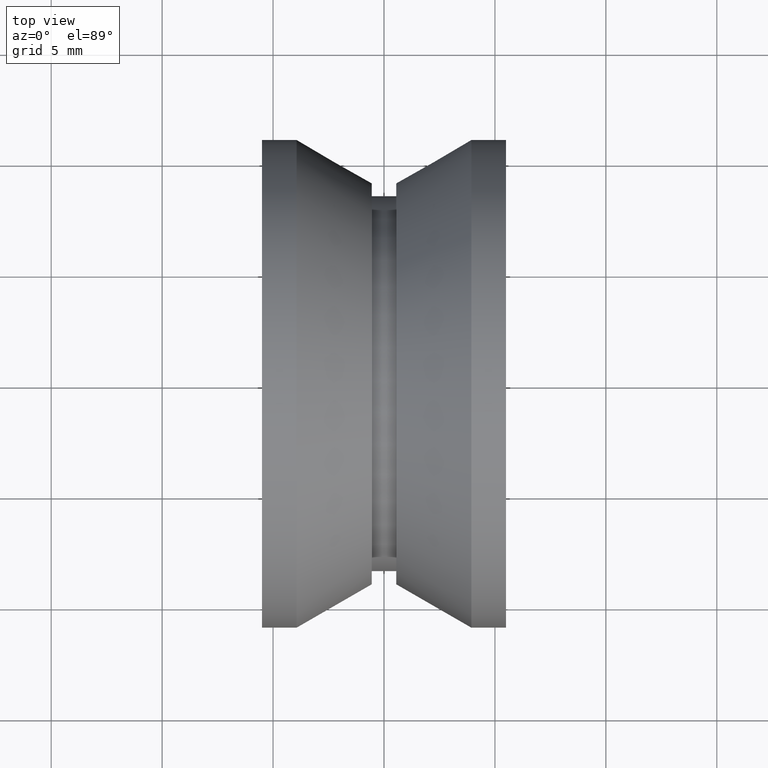
[diagram: clean part render]
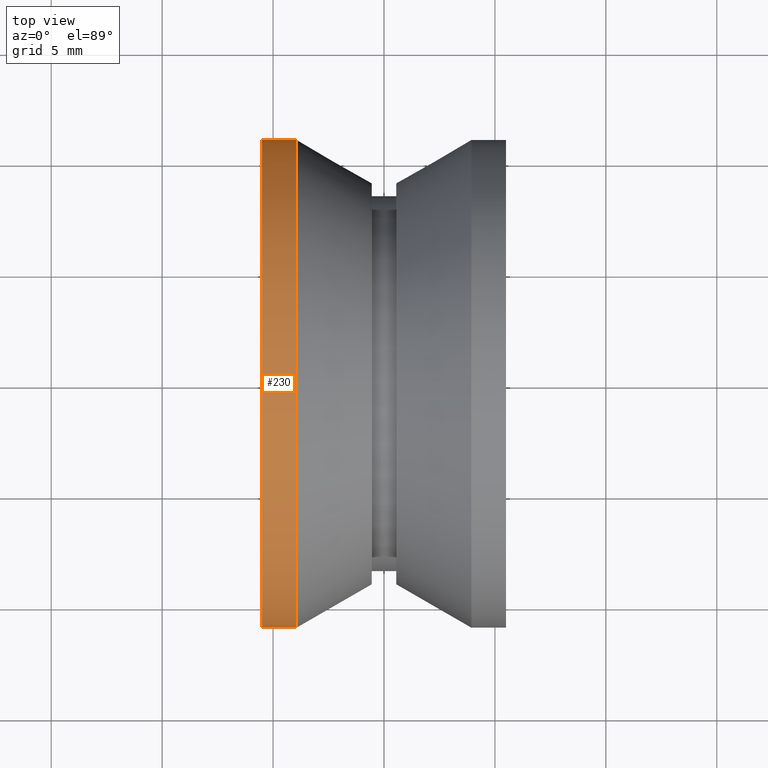
[diagram: same view with one face highlighted and labeled with its STEP entity id]
A machine part, top view. The second image highlights one B-rep face of the part: STEP entity #230.
In plain terms, the highlighted cylindrical surface (bore or boss wall) has radius 11 mm, axis along (1, 0, 0).
Its self-contained STEP definition (entity closure, byte-faithful):
#19=LINE('',#409,#29);
#29=VECTOR('',#332,11.);
#39=CYLINDRICAL_SURFACE('',#277,11.);
#58=FACE_OUTER_BOUND('',#79,.T.);
#79=EDGE_LOOP('',(#175,#176,#177,#178));
#102=CIRCLE('',#276,11.);
#103=CIRCLE('',#278,11.);
#120=VERTEX_POINT('',#404);
#121=VERTEX_POINT('',#407);
#140=EDGE_CURVE('',#120,#120,#102,.T.);
#141=EDGE_CURVE('',#121,#121,#103,.T.);
#142=EDGE_CURVE('',#121,#120,#19,.T.);
#175=ORIENTED_EDGE('',*,*,#141,.F.);
#176=ORIENTED_EDGE('',*,*,#142,.T.);
#177=ORIENTED_EDGE('',*,*,#140,.T.);
#178=ORIENTED_EDGE('',*,*,#142,.F.);
#230=ADVANCED_FACE('',(#58),#39,.T.);
#276=AXIS2_PLACEMENT_3D('',#405,#326,#327);
#277=AXIS2_PLACEMENT_3D('',#406,#328,#329);
#278=AXIS2_PLACEMENT_3D('',#408,#330,#331);
#326=DIRECTION('center_axis',(1.,0.,0.));
#327=DIRECTION('ref_axis',(0.,1.,0.));
#328=DIRECTION('center_axis',(1.,0.,0.));
#329=DIRECTION('ref_axis',(0.,1.,0.));
#330=DIRECTION('center_axis',(1.,0.,0.));
#331=DIRECTION('ref_axis',(0.,1.,0.));
#332=DIRECTION('',(-1.,0.,0.));
#404=CARTESIAN_POINT('',(-5.50000000000001,-11.,-1.34711147906209E-15));
#405=CARTESIAN_POINT('Origin',(-5.50000000000001,0.,0.));
#406=CARTESIAN_POINT('Origin',(-4.71891108675445,0.,0.));
#407=CARTESIAN_POINT('',(-3.9378221735089,-11.,-1.34711147906209E-15));
#408=CARTESIAN_POINT('Origin',(-3.9378221735089,0.,0.));
#409=CARTESIAN_POINT('',(-4.71891108675445,-11.,-1.34711147906209E-15));